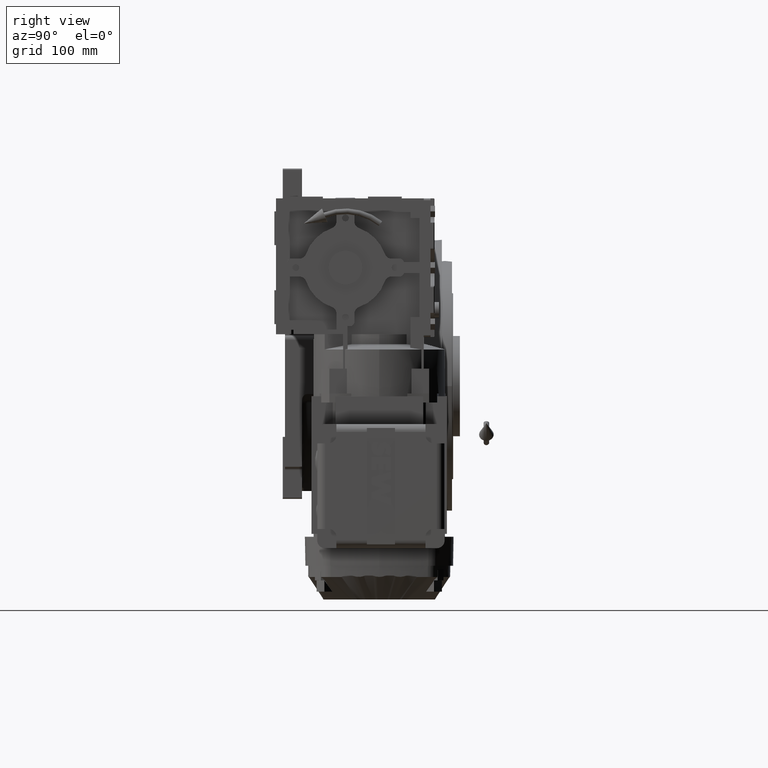
[diagram: clean part render]
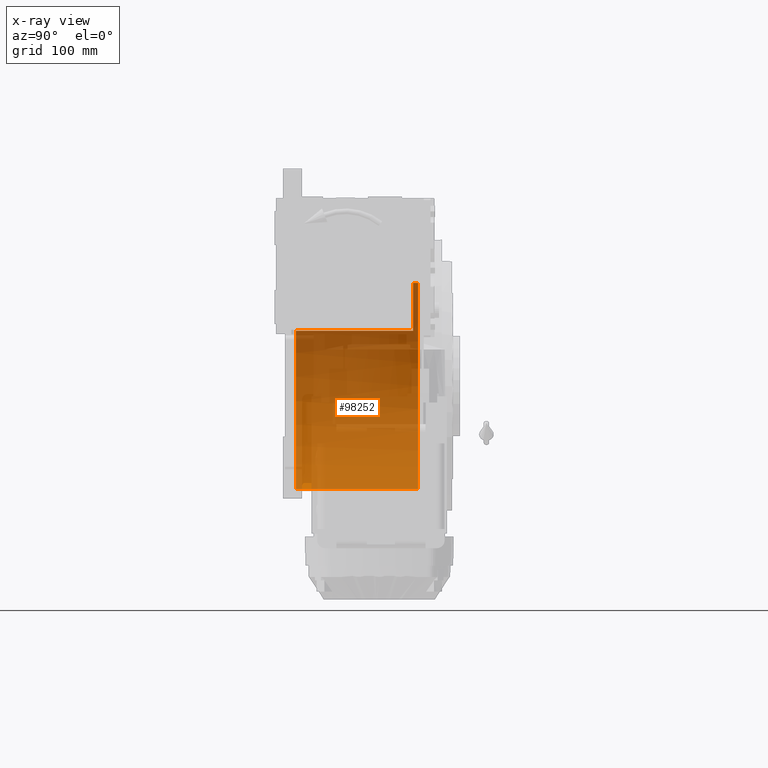
[diagram: x-ray — body ghosted, one internal face saturated and labeled with its STEP entity id]
A machine part, right view, then the same camera in x-ray: the body is ghosted and one INTERNAL B-rep face — a face not visible from any outside direction — is saturated and labeled: STEP entity #98252.
In plain terms, the highlighted cylindrical surface (partial cylindrical patch) has radius 91.5 mm, axis along (0, -1, 0).
Its self-contained STEP definition (entity closure, byte-faithful):
#3343 = AXIS2_PLACEMENT_3D ( 'NONE', #44075, #62865, #78881 ) ;
#4763 = VERTEX_POINT ( 'NONE', #106521 ) ;
#6480 = CIRCLE ( 'NONE', #52416, 91.50000000000000000 ) ;
#6953 = VERTEX_POINT ( 'NONE', #15538 ) ;
#7590 = CARTESIAN_POINT ( 'NONE',  ( -77.27386362800814368, -44.00000000000000000, 49.00000000000000000 ) ) ;
#9724 = DIRECTION ( 'NONE',  ( 0.000000000000000000, -1.000000000000000000, 0.000000000000000000 ) ) ;
#10803 = ORIENTED_EDGE ( 'NONE', *, *, #102868, .F. ) ;
#14978 = VECTOR ( 'NONE', #70976, 1000.000000000000000 ) ;
#15538 = CARTESIAN_POINT ( 'NONE',  ( 0.000000000000000000, 64.50000000000000000, -91.50000000000000000 ) ) ;
#18017 = CYLINDRICAL_SURFACE ( 'NONE', #22315, 91.50000000000000000 ) ;
#21922 = VERTEX_POINT ( 'NONE', #108452 ) ;
#22315 = AXIS2_PLACEMENT_3D ( 'NONE', #85472, #9724, #77165 ) ;
#22386 = CARTESIAN_POINT ( 'NONE',  ( 0.000000000000000000, 60.00000000000000000, 0.000000000000000000 ) ) ;
#22801 = CARTESIAN_POINT ( 'NONE',  ( -77.27386362800812947, 69.00000000000004263, 48.99999999999998579 ) ) ;
#32431 = EDGE_LOOP ( 'NONE', ( #76892, #66799, #80247, #94685, #10803, #86730 ) ) ;
#32693 = LINE ( 'NONE', #66409, #47603 ) ;
#42639 = VERTEX_POINT ( 'NONE', #66158 ) ;
#44075 = CARTESIAN_POINT ( 'NONE',  ( 0.000000000000000000, -44.00000000000000000, 0.000000000000000000 ) ) ;
#45383 = CARTESIAN_POINT ( 'NONE',  ( 0.000000000000000000, 64.50000000000000000, 0.000000000000000000 ) ) ;
#47603 = VECTOR ( 'NONE', #100138, 1000.000000000000000 ) ;
#52416 = AXIS2_PLACEMENT_3D ( 'NONE', #22386, #106980, #56132 ) ;
#56132 = DIRECTION ( 'NONE',  ( 1.776356839400250465E-15, 0.000000000000000000, -1.000000000000000000 ) ) ;
#58734 = EDGE_CURVE ( 'NONE', #70716, #42639, #81402, .T. ) ;
#61898 = VERTEX_POINT ( 'NONE', #106642 ) ;
#62865 = DIRECTION ( 'NONE',  ( 0.000000000000000000, 1.000000000000000000, 0.000000000000000000 ) ) ;
#66158 = CARTESIAN_POINT ( 'NONE',  ( -77.27386362800814368, 60.00000000000000000, 48.99999999999998579 ) ) ;
#66409 = CARTESIAN_POINT ( 'NONE',  ( 0.000000000000000000, 69.00000000000004263, -91.50000000000000000 ) ) ;
#66799 = ORIENTED_EDGE ( 'NONE', *, *, #109284, .T. ) ;
#70128 = EDGE_CURVE ( 'NONE', #4763, #6953, #107786, .T. ) ;
#70716 = VERTEX_POINT ( 'NONE', #7590 ) ;
#70976 = DIRECTION ( 'NONE',  ( 0.000000000000000000, -1.000000000000000000, 0.000000000000000000 ) ) ;
#71525 = LINE ( 'NONE', #106934, #14978 ) ;
#73647 = DIRECTION ( 'NONE',  ( -0.000000000000000000, 1.000000000000000000, -0.000000000000000000 ) ) ;
#76892 = ORIENTED_EDGE ( 'NONE', *, *, #70128, .F. ) ;
#77165 = DIRECTION ( 'NONE',  ( 0.000000000000000000, 0.000000000000000000, -1.000000000000000000 ) ) ;
#78881 = DIRECTION ( 'NONE',  ( 0.000000000000000000, 0.000000000000000000, 1.000000000000000000 ) ) ;
#80247 = ORIENTED_EDGE ( 'NONE', *, *, #80666, .F. ) ;
#80666 = EDGE_CURVE ( 'NONE', #42639, #61898, #6480, .T. ) ;
#81402 = LINE ( 'NONE', #22801, #104367 ) ;
#85472 = CARTESIAN_POINT ( 'NONE',  ( 0.000000000000000000, 69.00000000000004263, 0.000000000000000000 ) ) ;
#85480 = EDGE_CURVE ( 'NONE', #6953, #21922, #32693, .T. ) ;
#86730 = ORIENTED_EDGE ( 'NONE', *, *, #85480, .F. ) ;
#88350 = AXIS2_PLACEMENT_3D ( 'NONE', #45383, #89067, #106211 ) ;
#89067 = DIRECTION ( 'NONE',  ( -0.000000000000000000, -1.000000000000000000, -0.000000000000000000 ) ) ;
#93769 = FACE_OUTER_BOUND ( 'NONE', #32431, .T. ) ;
#94685 = ORIENTED_EDGE ( 'NONE', *, *, #58734, .F. ) ;
#98252 = ADVANCED_FACE ( 'NONE', ( #93769 ), #18017, .F. ) ;
#100138 = DIRECTION ( 'NONE',  ( 0.000000000000000000, -1.000000000000000000, 0.000000000000000000 ) ) ;
#100408 = CIRCLE ( 'NONE', #3343, 91.50000000000000000 ) ;
#102868 = EDGE_CURVE ( 'NONE', #21922, #70716, #100408, .T. ) ;
#104367 = VECTOR ( 'NONE', #73647, 1000.000000000000000 ) ;
#106211 = DIRECTION ( 'NONE',  ( 0.000000000000000000, 0.000000000000000000, 1.000000000000000000 ) ) ;
#106521 = CARTESIAN_POINT ( 'NONE',  ( 1.120551821219827868E-14, 64.50000000000000000, 91.50000000000000000 ) ) ;
#106642 = CARTESIAN_POINT ( 'NONE',  ( 1.120551821219827868E-14, 60.00000000000000000, 91.50000000000000000 ) ) ;
#106934 = CARTESIAN_POINT ( 'NONE',  ( 1.120551821219827868E-14, 69.00000000000004263, 91.50000000000000000 ) ) ;
#106980 = DIRECTION ( 'NONE',  ( 0.000000000000000000, 1.000000000000000000, 0.000000000000000000 ) ) ;
#107786 = CIRCLE ( 'NONE', #88350, 91.50000000000000000 ) ;
#108452 = CARTESIAN_POINT ( 'NONE',  ( 0.000000000000000000, -44.00000000000000000, -91.50000000000000000 ) ) ;
#109284 = EDGE_CURVE ( 'NONE', #4763, #61898, #71525, .T. ) ;